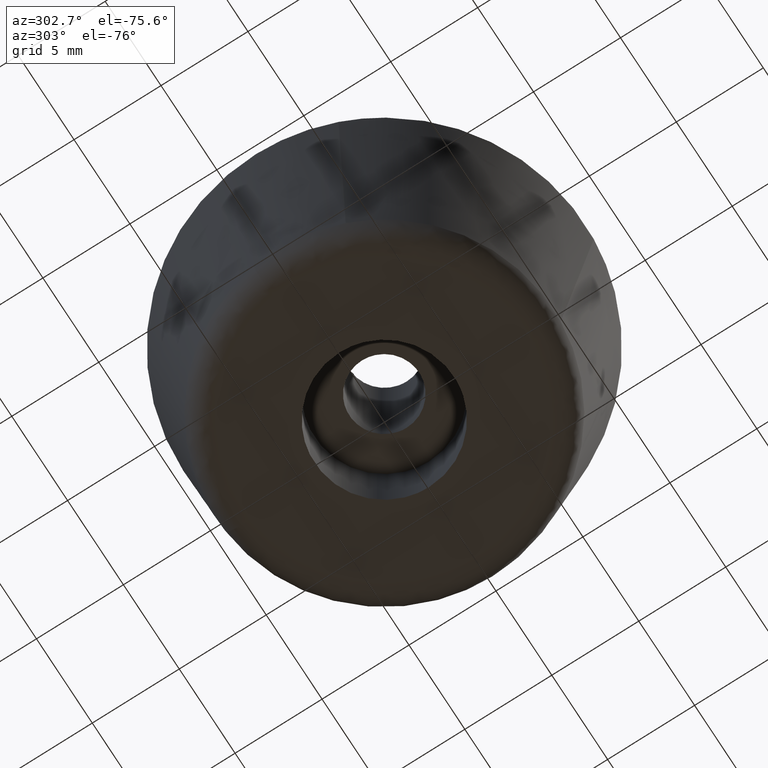
[diagram: clean part render]
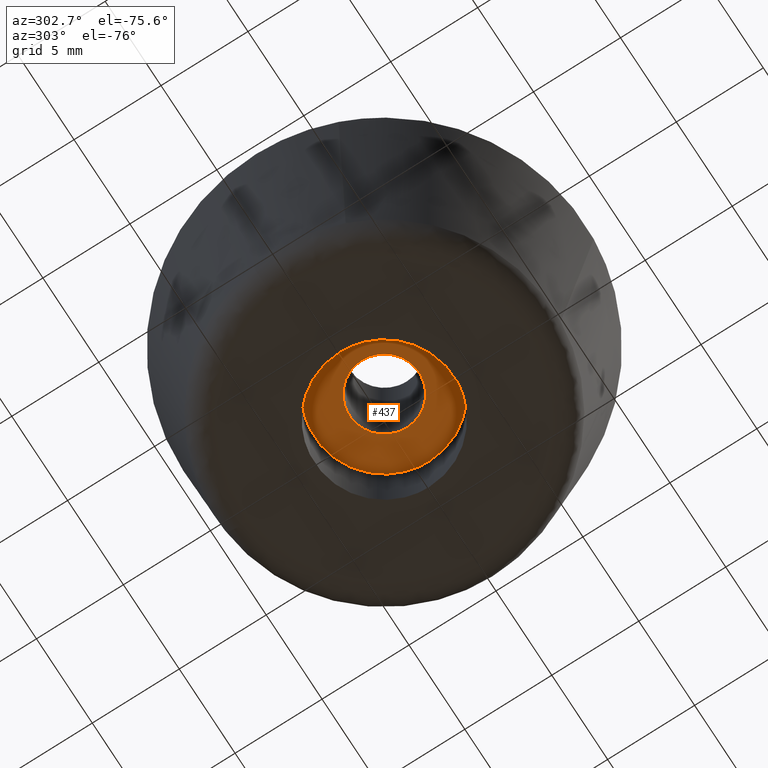
[diagram: same view with one face highlighted and labeled with its STEP entity id]
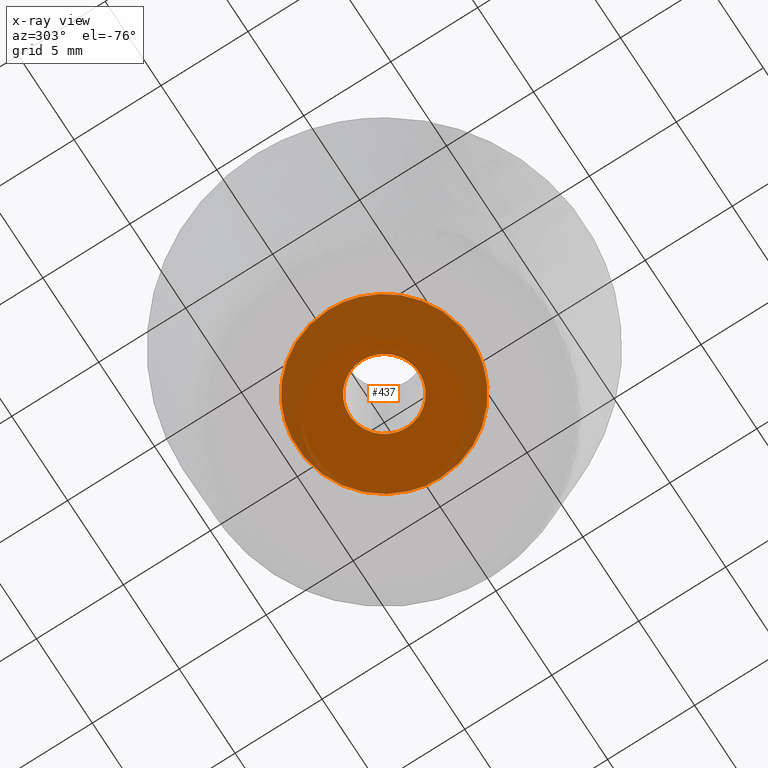
[diagram: x-ray of the same camera — body ghosted, the highlighted face saturated]
A machine part, auxiliary view. The second image highlights one B-rep face of the part: STEP entity #437.
The next image is the same camera in x-ray: the body ghosted, the highlighted face saturated — about 47% of this face is hidden behind the body in this view.
In plain terms, the highlighted face is a freeform B-spline surface patch.
Its self-contained STEP definition (entity closure, byte-faithful):
#66=CARTESIAN_POINT('',(-0.236065885864536,1.986019359805997,4.999999999999870));
#67=VERTEX_POINT('',#66);
#68=CARTESIAN_POINT('',(2.0,0.0,5.0));
#69=VERTEX_POINT('',#68);
#70=CARTESIAN_POINT('',(-0.236065885864536,1.986019359805997,4.999999999999870));
#71=CARTESIAN_POINT('',(-0.118446933923636,2.000000000000000,5.0));
#72=CARTESIAN_POINT('',(0.0,2.0,5.0));
#73=CARTESIAN_POINT('',(2.000000000000000,2.000000000000000,5.000000000000001));
#74=CARTESIAN_POINT('',(2.0,0.0,5.0));
#82=(BOUNDED_CURVE()B_SPLINE_CURVE(2,(#70,#71,#72,#73,#74),.UNSPECIFIED.,.F.,.U.)B_SPLINE_CURVE_WITH_KNOTS((3,2,3),(0.229562693358100,0.250000000000000,0.500000000000000),.UNSPECIFIED.)CURVE()GEOMETRIC_REPRESENTATION_ITEM()RATIONAL_B_SPLINE_CURVE((0.956027185088548,0.976056205895105,1.0,0.707106781186548,1.0))REPRESENTATION_ITEM(''));
#83=EDGE_CURVE('',#67,#69,#82,.T.);
#85=CARTESIAN_POINT('',(0.122097079102479,-1.996269596841730,5.0));
#86=VERTEX_POINT('',#85);
#87=CARTESIAN_POINT('',(2.0,0.0,5.0));
#88=CARTESIAN_POINT('',(2.000000000000000,-1.881412133749522,5.0));
#89=CARTESIAN_POINT('',(0.122097079102479,-1.996269596841730,5.0));
#97=(BOUNDED_CURVE()B_SPLINE_CURVE(2,(#87,#88,#89),.UNSPECIFIED.,.F.,.U.)B_SPLINE_CURVE_WITH_KNOTS((3,3),(0.500000000000000,0.739332962236305),.UNSPECIFIED.)CURVE()GEOMETRIC_REPRESENTATION_ITEM()RATIONAL_B_SPLINE_CURVE((1.0,0.719603993289801,0.976072041661064))REPRESENTATION_ITEM(''));
#98=EDGE_CURVE('',#69,#86,#97,.T.);
#165=CARTESIAN_POINT('',(-2.0,0.0,5.0));
#166=VERTEX_POINT('',#165);
#167=CARTESIAN_POINT('',(-2.0,0.0,5.0));
#168=CARTESIAN_POINT('',(-2.000000000000000,1.776351378876870,5.000000000000002));
#169=CARTESIAN_POINT('',(-0.236065885864536,1.986019359805997,4.999999999999870));
#177=(BOUNDED_CURVE()B_SPLINE_CURVE(2,(#167,#168,#169),.UNSPECIFIED.,.F.,.U.)B_SPLINE_CURVE_WITH_KNOTS((3,3),(0.0,0.229562693358100),.UNSPECIFIED.)CURVE()GEOMETRIC_REPRESENTATION_ITEM()RATIONAL_B_SPLINE_CURVE((1.0,0.731050575291442,0.956027185088548))REPRESENTATION_ITEM(''));
#178=EDGE_CURVE('',#166,#67,#177,.T.);
#212=CARTESIAN_POINT('',(0.122097079102479,-1.996269596841730,5.0));
#213=CARTESIAN_POINT('',(0.061105526630035,-2.0,4.999999999999999));
#214=CARTESIAN_POINT('',(0.0,-2.0,5.0));
#215=CARTESIAN_POINT('',(-2.000000000000000,-2.000000000000000,5.000000000000001));
#216=CARTESIAN_POINT('',(-2.0,0.0,5.0));
#224=(BOUNDED_CURVE()B_SPLINE_CURVE(2,(#212,#213,#214,#215,#216),.UNSPECIFIED.,.F.,.U.)B_SPLINE_CURVE_WITH_KNOTS((3,2,3),(0.739332962236304,0.750000000000000,1.0),.UNSPECIFIED.)CURVE()GEOMETRIC_REPRESENTATION_ITEM()RATIONAL_B_SPLINE_CURVE((0.976072041661062,0.987502787896746,1.0,0.707106781186548,1.0))REPRESENTATION_ITEM(''));
#225=EDGE_CURVE('',#86,#166,#224,.T.);
#256=CARTESIAN_POINT('',(-0.590168624489621,4.965047934779827,5.000000000000081));
#257=VERTEX_POINT('',#256);
#258=CARTESIAN_POINT('',(5.0,0.0,5.0));
#259=VERTEX_POINT('',#258);
#260=CARTESIAN_POINT('',(-0.590168624489621,4.965047934779827,5.000000000000081));
#261=CARTESIAN_POINT('',(-0.296119310389800,5.0,5.0));
#262=CARTESIAN_POINT('',(0.0,5.0,5.0));
#263=CARTESIAN_POINT('',(5.000000000000001,5.000000000000001,5.000000000000001));
#264=CARTESIAN_POINT('',(5.0,0.0,5.0));
#272=(BOUNDED_CURVE()B_SPLINE_CURVE(2,(#260,#261,#262,#263,#264),.UNSPECIFIED.,.F.,.U.)B_SPLINE_CURVE_WITH_KNOTS((3,2,3),(0.229562560273022,0.250000000000000,0.500000000000000),.UNSPECIFIED.)CURVE()GEOMETRIC_REPRESENTATION_ITEM()RATIONAL_B_SPLINE_CURVE((0.956026924235966,0.976056049976238,1.0,0.707106781186548,1.0))REPRESENTATION_ITEM(''));
#273=EDGE_CURVE('',#257,#259,#272,.T.);
#314=CARTESIAN_POINT('',(0.305234974997244,-4.990674464436502,5.000000000000235));
#315=VERTEX_POINT('',#314);
#321=CARTESIAN_POINT('',(5.0,0.0,5.0));
#322=CARTESIAN_POINT('',(5.0,-4.703537626478767,5.0));
#323=CARTESIAN_POINT('',(0.305234974997244,-4.990674464436502,5.000000000000235));
#331=(BOUNDED_CURVE()B_SPLINE_CURVE(2,(#321,#322,#323),.UNSPECIFIED.,.F.,.U.)B_SPLINE_CURVE_WITH_KNOTS((3,3),(0.500000000000000,0.739333229244662),.UNSPECIFIED.)CURVE()GEOMETRIC_REPRESENTATION_ITEM()RATIONAL_B_SPLINE_CURVE((1.0,0.719603680470053,0.976072613911467))REPRESENTATION_ITEM(''));
#332=EDGE_CURVE('',#259,#315,#331,.T.);
#355=CARTESIAN_POINT('',(-5.0,0.0,5.0));
#356=VERTEX_POINT('',#355);
#357=CARTESIAN_POINT('',(-5.0,0.0,5.0));
#358=CARTESIAN_POINT('',(-5.0,4.440874925515972,5.0));
#359=CARTESIAN_POINT('',(-0.590168624489621,4.965047934779827,5.000000000000081));
#367=(BOUNDED_CURVE()B_SPLINE_CURVE(2,(#357,#358,#359),.UNSPECIFIED.,.F.,.U.)B_SPLINE_CURVE_WITH_KNOTS((3,3),(0.0,0.229562560273022),.UNSPECIFIED.)CURVE()GEOMETRIC_REPRESENTATION_ITEM()RATIONAL_B_SPLINE_CURVE((1.0,0.731050731210310,0.956026924235966))REPRESENTATION_ITEM(''));
#368=EDGE_CURVE('',#356,#257,#367,.T.);
#370=CARTESIAN_POINT('',(0.305234974997244,-4.990674464436502,5.000000000000235));
#371=CARTESIAN_POINT('',(0.152759944328064,-5.0,5.0));
#372=CARTESIAN_POINT('',(0.0,-5.0,5.0));
#373=CARTESIAN_POINT('',(-5.000000000000001,-5.000000000000001,5.000000000000001));
#374=CARTESIAN_POINT('',(-5.0,0.0,5.0));
#382=(BOUNDED_CURVE()B_SPLINE_CURVE(2,(#370,#371,#372,#373,#374),.UNSPECIFIED.,.F.,.U.)B_SPLINE_CURVE_WITH_KNOTS((3,2,3),(0.739333229244662,0.750000000000000,1.0),.UNSPECIFIED.)CURVE()GEOMETRIC_REPRESENTATION_ITEM()RATIONAL_B_SPLINE_CURVE((0.976072613911467,0.987503100716495,1.0,0.707106781186548,1.0))REPRESENTATION_ITEM(''));
#383=EDGE_CURVE('',#315,#356,#382,.T.);
#420=CARTESIAN_POINT('',(-5.499499980618060,-5.499378285062297,5.0));
#421=CARTESIAN_POINT('',(5.499500248838961,-5.499378285062297,5.0));
#422=CARTESIAN_POINT('',(-5.499499980618060,5.499409041059002,5.0));
#423=CARTESIAN_POINT('',(5.499500248838961,5.499409041059002,5.0));
#424=B_SPLINE_SURFACE_WITH_KNOTS('',1,1,((#420,#422),(#421,#423)),.UNSPECIFIED.,.F.,.F.,.U.,(2,2),(2,2),(0.0,10.999000229457019),(0.0,10.998787326121301),.UNSPECIFIED.);
#425=ORIENTED_EDGE('',*,*,#368,.T.);
#426=ORIENTED_EDGE('',*,*,#273,.T.);
#427=ORIENTED_EDGE('',*,*,#332,.T.);
#428=ORIENTED_EDGE('',*,*,#383,.T.);
#429=EDGE_LOOP('',(#425,#426,#427,#428));
#430=FACE_OUTER_BOUND('',#429,.T.);
#431=ORIENTED_EDGE('',*,*,#98,.F.);
#432=ORIENTED_EDGE('',*,*,#83,.F.);
#433=ORIENTED_EDGE('',*,*,#178,.F.);
#434=ORIENTED_EDGE('',*,*,#225,.F.);
#435=EDGE_LOOP('',(#431,#432,#433,#434));
#436=FACE_BOUND('',#435,.T.);
#437=ADVANCED_FACE('',(#430,#436),#424,.F.);